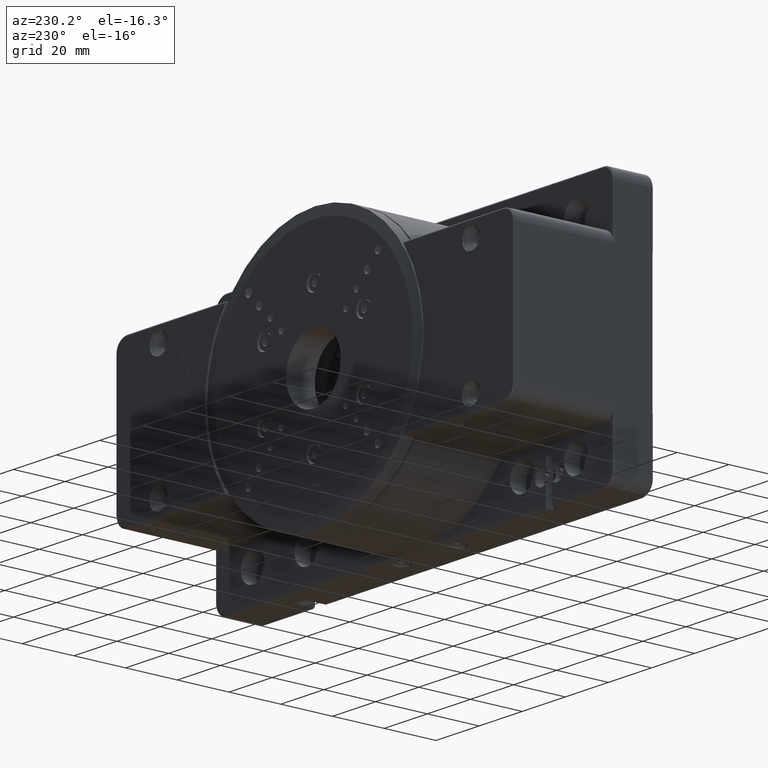
[diagram: clean part render]
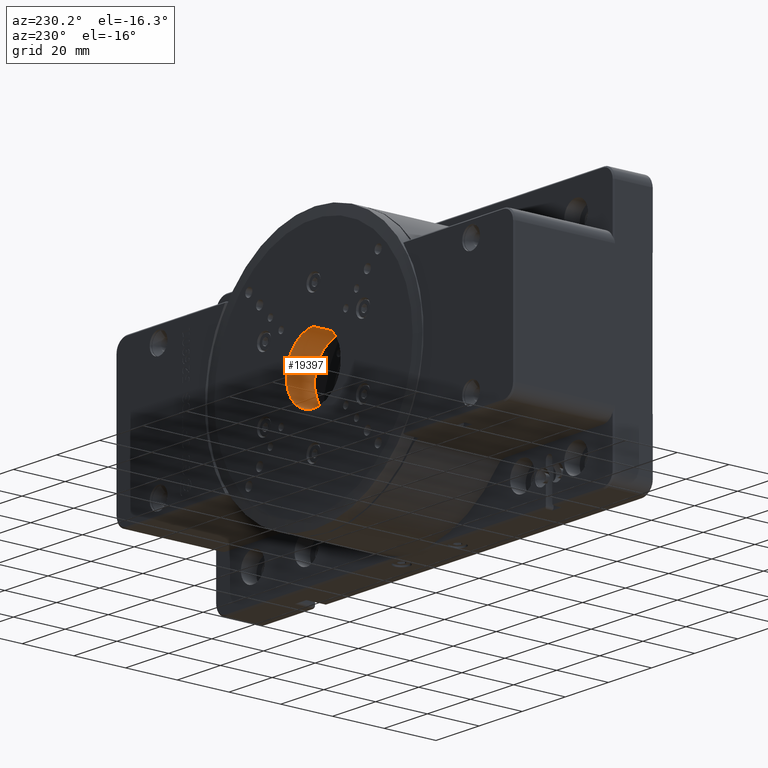
[diagram: same view with one face highlighted and labeled with its STEP entity id]
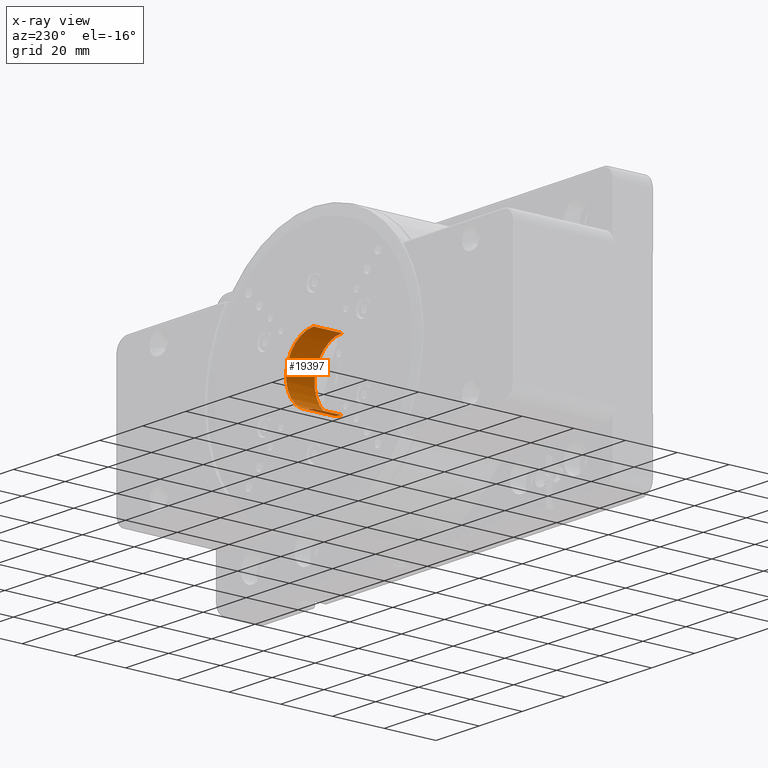
[diagram: x-ray of the same camera — body ghosted, the highlighted face saturated]
A machine part, auxiliary view. The second image highlights one B-rep face of the part: STEP entity #19397.
The next image is the same camera in x-ray: the body ghosted, the highlighted face saturated — about 0% of this face is hidden behind the body in this view.
In plain terms, the highlighted cylindrical surface (partial cylindrical patch) has radius 12.7 mm, axis along (0, 1, -0).
Its self-contained STEP definition (entity closure, byte-faithful):
#3579 = ORIENTED_EDGE ( 'NONE', *, *, #6545, .F. ) ;
#6545 = EDGE_CURVE ( 'NONE', #8638, #43157, #26541, .T. ) ;
#7021 = LINE ( 'NONE', #15856, #38995 ) ;
#8638 = VERTEX_POINT ( 'NONE', #14813 ) ;
#9560 = CIRCLE ( 'NONE', #15764, 12.69999999999999900 ) ;
#10196 = CARTESIAN_POINT ( 'NONE',  ( 1.555301434917138400E-015, 24.00000000000000000, -12.69999999999999900 ) ) ;
#12621 = EDGE_LOOP ( 'NONE', ( #3579, #27843, #37481, #38208 ) ) ;
#12652 = CARTESIAN_POINT ( 'NONE',  ( 0.0000000000000000000, 13.00000000000000500, -1.777125317778576500E-031 ) ) ;
#13110 = FACE_OUTER_BOUND ( 'NONE', #12621, .T. ) ;
#14813 = CARTESIAN_POINT ( 'NONE',  ( 1.555301434917138400E-015, 13.00000000000000500, -12.69999999999999900 ) ) ;
#15764 = AXIS2_PLACEMENT_3D ( 'NONE', #12652, #41722, #16873 ) ;
#15856 = CARTESIAN_POINT ( 'NONE',  ( 0.0000000000000000000, 13.00000000000000500, 12.69999999999999900 ) ) ;
#16373 = CARTESIAN_POINT ( 'NONE',  ( 0.0000000000000000000, 24.00000000000000000, -7.512581982576723400E-016 ) ) ;
#16873 = DIRECTION ( 'NONE',  ( 0.0000000000000000000, 0.0000000000000000000, 1.000000000000000000 ) ) ;
#17942 = CARTESIAN_POINT ( 'NONE',  ( 1.555301434917138400E-015, 13.00000000000000200, -12.69999999999999900 ) ) ;
#19397 = ADVANCED_FACE ( 'NONE', ( #13110 ), #53179, .F. ) ;
#20615 = DIRECTION ( 'NONE',  ( 0.0000000000000000000, 0.0000000000000000000, 1.000000000000000000 ) ) ;
#22114 = AXIS2_PLACEMENT_3D ( 'NONE', #52000, #47941, #27442 ) ;
#22151 = EDGE_CURVE ( 'NONE', #44827, #39734, #7021, .T. ) ;
#23721 = DIRECTION ( 'NONE',  ( 0.0000000000000000000, 1.000000000000000000, -6.829619984160658000E-017 ) ) ;
#26541 = LINE ( 'NONE', #17942, #47146 ) ;
#26600 = AXIS2_PLACEMENT_3D ( 'NONE', #16373, #45355, #20615 ) ;
#27442 = DIRECTION ( 'NONE',  ( 0.0000000000000000000, 1.365923996832131600E-016, 1.000000000000000000 ) ) ;
#27843 = ORIENTED_EDGE ( 'NONE', *, *, #36848, .F. ) ;
#35078 = EDGE_CURVE ( 'NONE', #39734, #43157, #35921, .T. ) ;
#35921 = CIRCLE ( 'NONE', #26600, 12.69999999999999900 ) ;
#36848 = EDGE_CURVE ( 'NONE', #44827, #8638, #9560, .T. ) ;
#37481 = ORIENTED_EDGE ( 'NONE', *, *, #22151, .T. ) ;
#38208 = ORIENTED_EDGE ( 'NONE', *, *, #35078, .T. ) ;
#38995 = VECTOR ( 'NONE', #40726, 1000.000000000000000 ) ;
#39734 = VERTEX_POINT ( 'NONE', #40441 ) ;
#40441 = CARTESIAN_POINT ( 'NONE',  ( 0.0000000000000000000, 24.00000000000000000, 12.69999999999999900 ) ) ;
#40726 = DIRECTION ( 'NONE',  ( 0.0000000000000000000, 1.000000000000000000, -6.829619984160658000E-017 ) ) ;
#41722 = DIRECTION ( 'NONE',  ( 0.0000000000000000000, 1.000000000000000000, -6.829619984160658000E-017 ) ) ;
#43157 = VERTEX_POINT ( 'NONE', #10196 ) ;
#44827 = VERTEX_POINT ( 'NONE', #50953 ) ;
#45355 = DIRECTION ( 'NONE',  ( 0.0000000000000000000, 1.000000000000000000, -6.829619984160658000E-017 ) ) ;
#47146 = VECTOR ( 'NONE', #23721, 1000.000000000000000 ) ;
#47941 = DIRECTION ( 'NONE',  ( 0.0000000000000000000, 1.000000000000000000, -6.829619984160658000E-017 ) ) ;
#50953 = CARTESIAN_POINT ( 'NONE',  ( 0.0000000000000000000, 13.00000000000000500, 12.69999999999999900 ) ) ;
#52000 = CARTESIAN_POINT ( 'NONE',  ( 0.0000000000000000000, 13.00000000000000400, 0.0000000000000000000 ) ) ;
#53179 = CYLINDRICAL_SURFACE ( 'NONE', #22114, 12.69999999999999900 ) ;